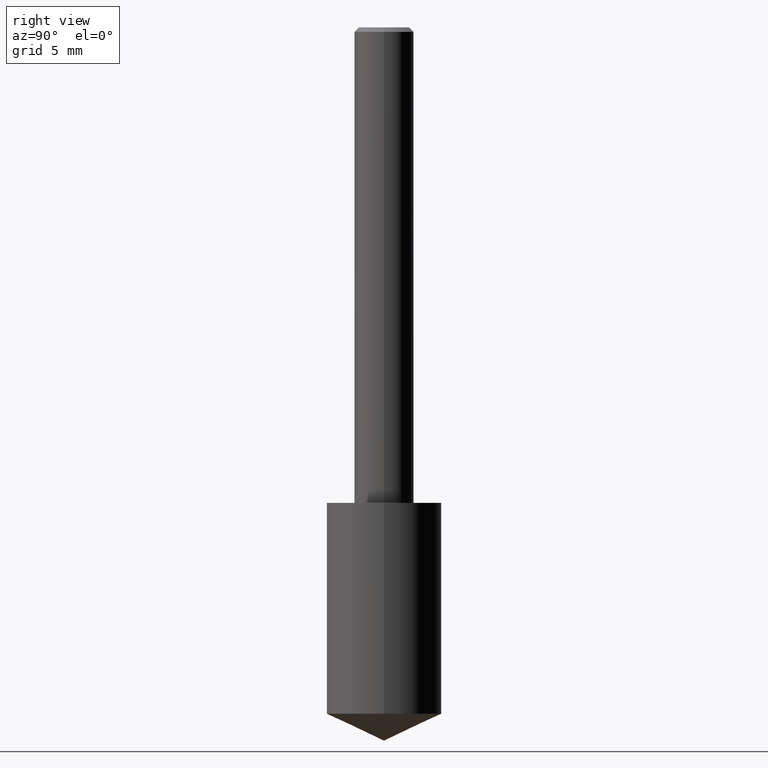
[diagram: clean part render]
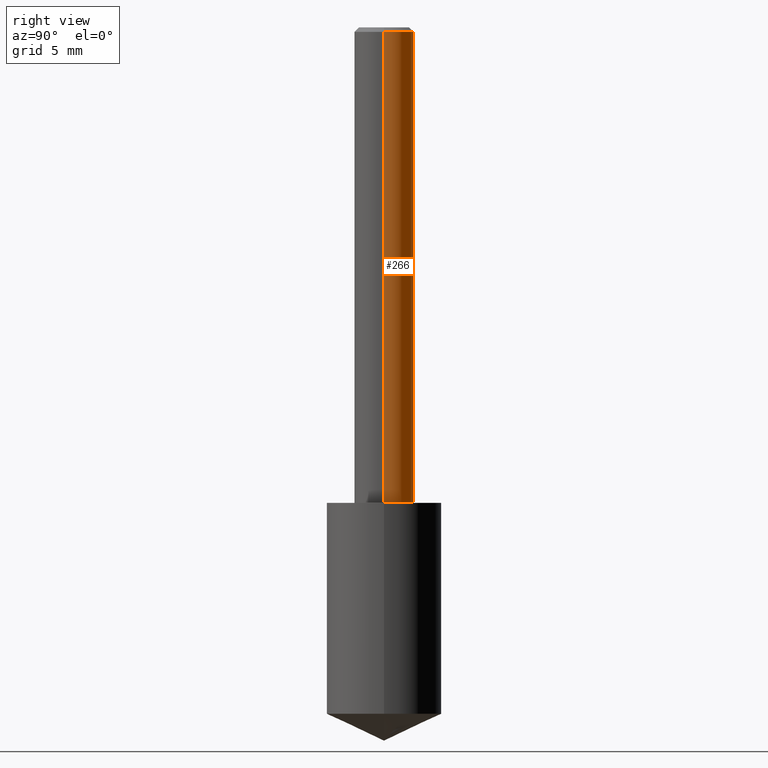
[diagram: same view with one face highlighted and labeled with its STEP entity id]
A machine part, right view. The second image highlights one B-rep face of the part: STEP entity #266.
In plain terms, the highlighted cylindrical surface (edge-blend (fillet) strip) has radius 1.5875 mm, axis along (-0, 0, 1).
Its self-contained STEP definition (entity closure, byte-faithful):
#1 = AXIS2_PLACEMENT_3D ( 'NONE', #221, #62, #89 ) ;
#2 = ORIENTED_EDGE ( 'NONE', *, *, #224, .T. ) ;
#21 = VERTEX_POINT ( 'NONE', #72 ) ;
#52 = FACE_OUTER_BOUND ( 'NONE', #61, .T. ) ;
#60 = CARTESIAN_POINT ( 'NONE',  ( 2.292627005798580623E-31, -3.273263755165470801E-17, -0.009375000000000062103 ) ) ;
#61 = EDGE_LOOP ( 'NONE', ( #313, #2, #187, #208 ) ) ;
#62 = DIRECTION ( 'NONE',  ( -2.445468806185136597E-29, 3.491481338843145583E-15, 1.000000000000000000 ) ) ;
#71 = CARTESIAN_POINT ( 'NONE',  ( 0.06250000000000012490, -3.927916506198539224E-15, -1.000000000000000222 ) ) ;
#72 = CARTESIAN_POINT ( 'NONE',  ( -0.06250000000000012490, -1.318017778347335489E-15, -1.000000000000000222 ) ) ;
#89 = DIRECTION ( 'NONE',  ( 1.000000000000000000, -6.982962677686264344E-15, 0.000000000000000000 ) ) ;
#91 = CARTESIAN_POINT ( 'NONE',  ( -0.06250000000000006939, 4.440892098500631092E-16, -3.074334431409319267E-30 ) ) ;
#95 = EDGE_CURVE ( 'NONE', #155, #121, #215, .T. ) ;
#113 = DIRECTION ( 'NONE',  ( -2.445468806185136597E-29, 3.491481338843145583E-15, 1.000000000000000000 ) ) ;
#121 = VERTEX_POINT ( 'NONE', #323 ) ;
#139 = DIRECTION ( 'NONE',  ( 1.000000000000000000, -6.982962677686266711E-15, 0.000000000000000000 ) ) ;
#146 = CARTESIAN_POINT ( 'NONE',  ( 0.06250000000000000000, -4.691678049070463404E-16, -0.009375000000000062103 ) ) ;
#155 = VERTEX_POINT ( 'NONE', #146 ) ;
#159 = EDGE_CURVE ( 'NONE', #186, #21, #291, .T. ) ;
#162 = CARTESIAN_POINT ( 'NONE',  ( 0.000000000000000000, 0.000000000000000000, 0.000000000000000000 ) ) ;
#186 = VERTEX_POINT ( 'NONE', #71 ) ;
#187 = ORIENTED_EDGE ( 'NONE', *, *, #95, .F. ) ;
#204 = DIRECTION ( 'NONE',  ( -2.445468806185136877E-29, 3.491481338843145188E-15, 1.000000000000000000 ) ) ;
#208 = ORIENTED_EDGE ( 'NONE', *, *, #302, .F. ) ;
#215 = CIRCLE ( 'NONE', #234, 0.06250000000000000000 ) ;
#221 = CARTESIAN_POINT ( 'NONE',  ( 2.445468806185137438E-29, -3.491481338843146371E-15, -1.000000000000000222 ) ) ;
#224 = EDGE_CURVE ( 'NONE', #21, #121, #335, .T. ) ;
#234 = AXIS2_PLACEMENT_3D ( 'NONE', #60, #279, #139 ) ;
#238 = AXIS2_PLACEMENT_3D ( 'NONE', #162, #113, #257 ) ;
#242 = DIRECTION ( 'NONE',  ( -2.445468806185136877E-29, 3.491481338843145188E-15, 1.000000000000000000 ) ) ;
#244 = LINE ( 'NONE', #322, #292 ) ;
#254 = VECTOR ( 'NONE', #204, 39.37007874015748143 ) ;
#257 = DIRECTION ( 'NONE',  ( 1.000000000000000000, -6.982962677686266711E-15, 4.876176775795935793E-29 ) ) ;
#266 = ADVANCED_FACE ( 'NONE', ( #52 ), #282, .T. ) ;
#279 = DIRECTION ( 'NONE',  ( -2.445468806185136597E-29, 3.491481338843145583E-15, 1.000000000000000000 ) ) ;
#282 = CYLINDRICAL_SURFACE ( 'NONE', #238, 0.06250000000000006939 ) ;
#291 = CIRCLE ( 'NONE', #1, 0.06250000000000012490 ) ;
#292 = VECTOR ( 'NONE', #242, 39.37007874015748143 ) ;
#302 = EDGE_CURVE ( 'NONE', #186, #155, #244, .T. ) ;
#313 = ORIENTED_EDGE ( 'NONE', *, *, #159, .T. ) ;
#322 = CARTESIAN_POINT ( 'NONE',  ( 0.06250000000000006939, -4.364351673553921624E-16, 3.047610484872463374E-30 ) ) ;
#323 = CARTESIAN_POINT ( 'NONE',  ( -0.06250000000000000000, -1.318017778347336672E-15, -0.009375000000000062103 ) ) ;
#335 = LINE ( 'NONE', #91, #254 ) ;